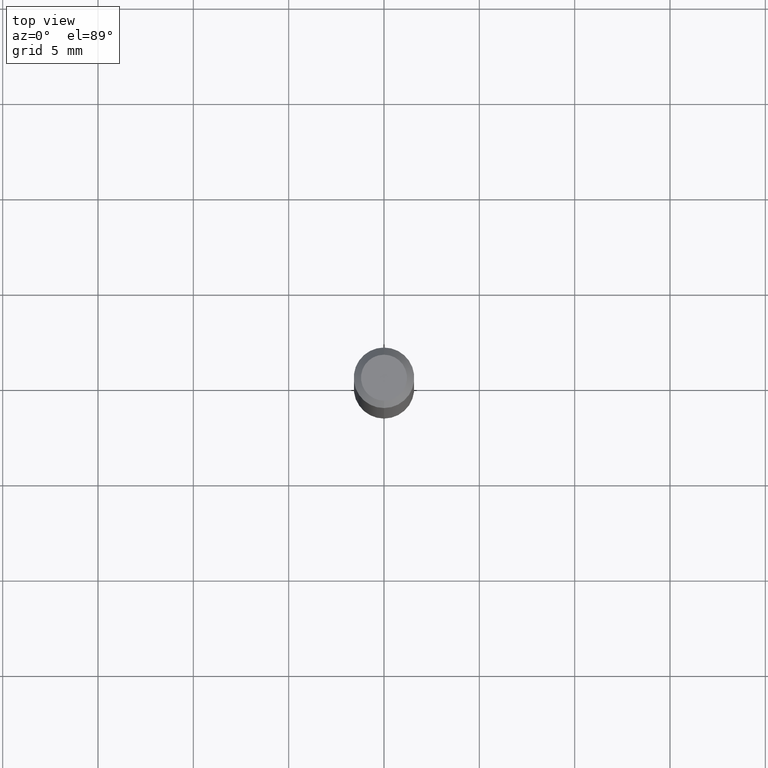
[diagram: clean part render]
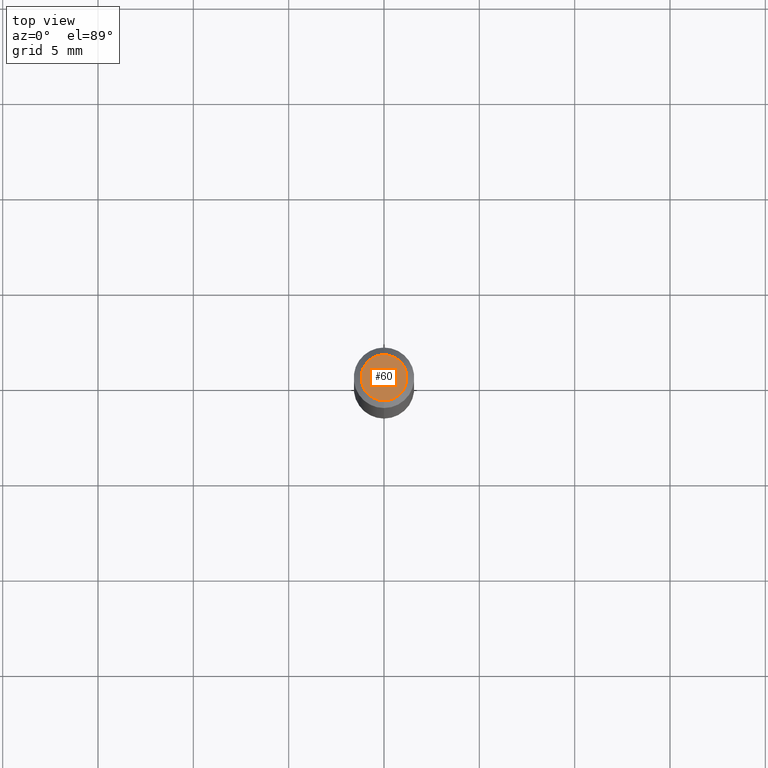
[diagram: same view with one face highlighted and labeled with its STEP entity id]
A machine part, top view. The second image highlights one B-rep face of the part: STEP entity #60.
In plain terms, the highlighted planar face has unit normal (0, -0, -1).
Its self-contained STEP definition (entity closure, byte-faithful):
#29 = DIRECTION ( 'NONE',  ( -6.982962677686266711E-15, -1.000000000000000000, 3.491466054748991790E-15 ) ) ;
#33 = CARTESIAN_POINT ( 'NONE',  ( -5.856627857448510527E-45, 8.361639316576110184E-31, 2.394879166934145762E-16 ) ) ;
#35 = AXIS2_PLACEMENT_3D ( 'NONE', #222, #282, #29 ) ;
#60 = ADVANCED_FACE ( 'NONE', ( #331 ), #214, .F. ) ;
#61 = EDGE_CURVE ( 'NONE', #325, #482, #471, .T. ) ;
#95 = CARTESIAN_POINT ( 'NONE',  ( 3.840629472727447874E-16, 0.04749999999999999362, 7.364327909283752044E-17 ) ) ;
#99 = DIRECTION ( 'NONE',  ( -2.445479479011041062E-29, 3.491466054748990607E-15, 1.000000000000000000 ) ) ;
#105 = ORIENTED_EDGE ( 'NONE', *, *, #61, .T. ) ;
#109 = ORIENTED_EDGE ( 'NONE', *, *, #134, .T. ) ;
#134 = EDGE_CURVE ( 'NONE', #482, #325, #144, .T. ) ;
#144 = CIRCLE ( 'NONE', #35, 0.04749999999999999362 ) ;
#145 = DIRECTION ( 'NONE',  ( 2.445479479011041062E-29, -3.491466054748990607E-15, -1.000000000000000000 ) ) ;
#154 = CARTESIAN_POINT ( 'NONE',  ( 3.316907271900976096E-16, 0.04749999999999999362, -4.610067925386976768E-17 ) ) ;
#166 = AXIS2_PLACEMENT_3D ( 'NONE', #154, #145, #450 ) ;
#214 = PLANE ( 'NONE',  #166 ) ;
#222 = CARTESIAN_POINT ( 'NONE',  ( -5.856627857448510527E-45, 8.361639316576110184E-31, 2.394879166934145762E-16 ) ) ;
#282 = DIRECTION ( 'NONE',  ( -2.445479479011041062E-29, 3.491466054748990607E-15, 1.000000000000000000 ) ) ;
#325 = VERTEX_POINT ( 'NONE', #95 ) ;
#331 = FACE_OUTER_BOUND ( 'NONE', #417, .T. ) ;
#362 = AXIS2_PLACEMENT_3D ( 'NONE', #33, #99, #410 ) ;
#382 = CARTESIAN_POINT ( 'NONE',  ( -3.773273898774340269E-16, -0.04749999999999999362, 4.053325542939916320E-16 ) ) ;
#410 = DIRECTION ( 'NONE',  ( -6.982962677686266711E-15, -1.000000000000000000, 3.491466054748991790E-15 ) ) ;
#417 = EDGE_LOOP ( 'NONE', ( #105, #109 ) ) ;
#450 = DIRECTION ( 'NONE',  ( 6.982962677686265922E-15, 1.000000000000000000, -3.491466054748990607E-15 ) ) ;
#471 = CIRCLE ( 'NONE', #362, 0.04749999999999999362 ) ;
#482 = VERTEX_POINT ( 'NONE', #382 ) ;